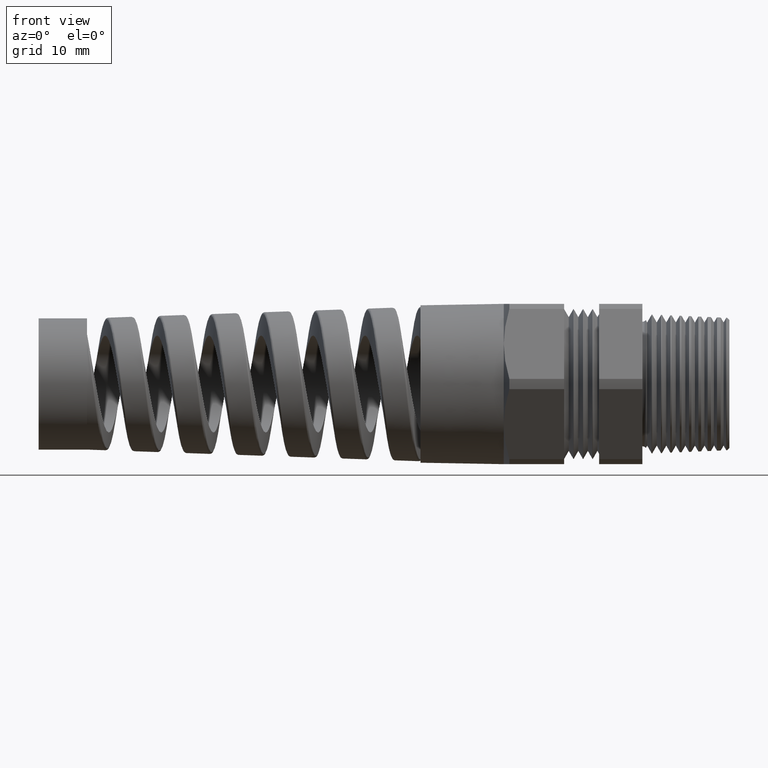
[diagram: clean part render]
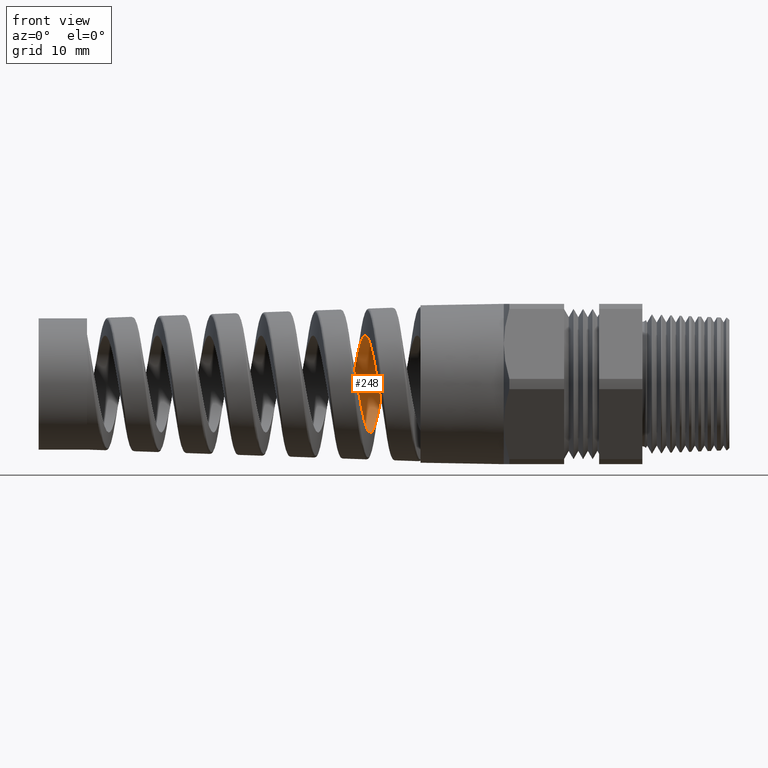
[diagram: same view with one face highlighted and labeled with its STEP entity id]
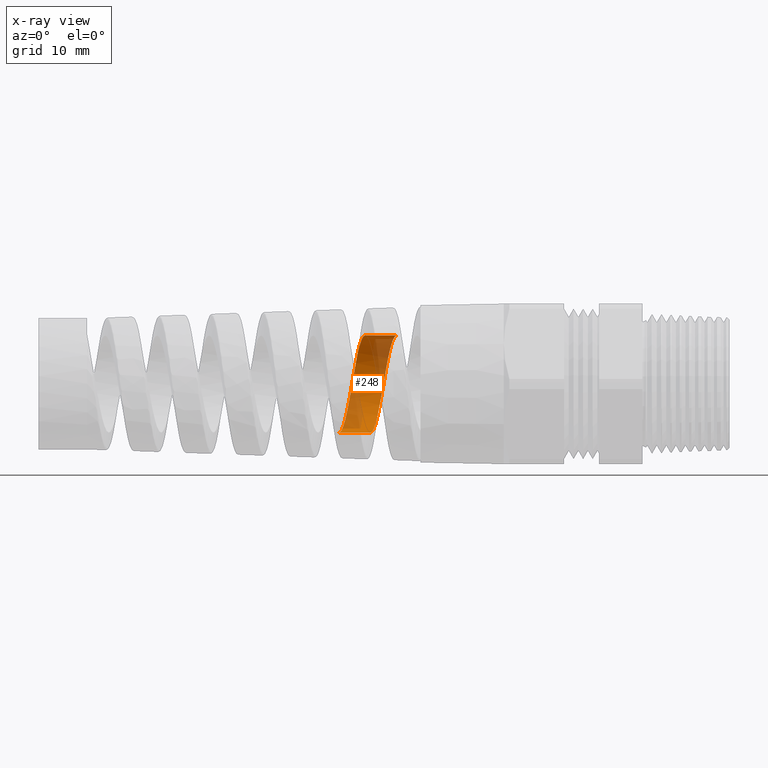
[diagram: x-ray of the same camera — body ghosted, the highlighted face saturated]
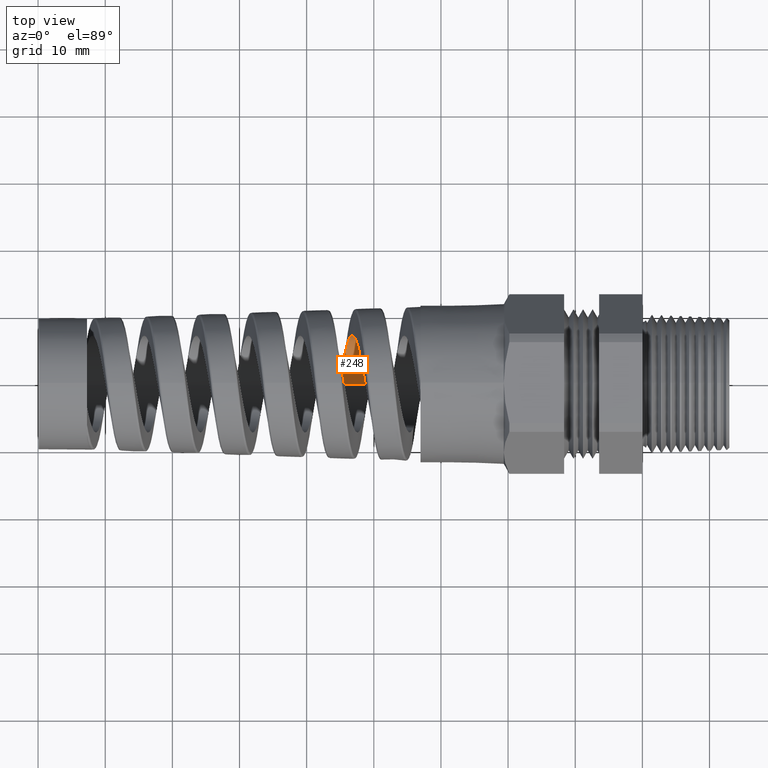
[diagram: same view with one face highlighted and labeled with its STEP entity id]
A machine part, front view. The second image highlights one B-rep face of the part: STEP entity #248.
The next image is the same camera in x-ray: the body ghosted, the highlighted face saturated — about 40% of this face is hidden behind the body in this view.
A second angle (top view) of the same face is appended — the face is thin or edge-on in the first view.
In plain terms, the highlighted cylindrical surface (partial cylindrical patch) has radius 7.2293 mm, axis along (1, 0, 0).
Its self-contained STEP definition (entity closure, byte-faithful):
#241 = EDGE_CURVE ( 'NONE', #298, #242, #1926, .T. ) ;
#242 = VERTEX_POINT ( 'NONE', #1948 ) ;
#248 = ADVANCED_FACE ( 'NONE', ( #1946 ), #1984, .F. ) ;
#249 = EDGE_LOOP ( 'NONE', ( #250, #251, #348, #349 ) ) ;
#250 = ORIENTED_EDGE ( 'NONE', *, *, #241, .F. ) ;
#251 = ORIENTED_EDGE ( 'NONE', *, *, #347, .F. ) ;
#263 = VERTEX_POINT ( 'NONE', #2086 ) ;
#280 = VERTEX_POINT ( 'NONE', #2294 ) ;
#282 = EDGE_CURVE ( 'NONE', #263, #280, #2293, .T. ) ;
#298 = VERTEX_POINT ( 'NONE', #2365 ) ;
#347 = EDGE_CURVE ( 'NONE', #263, #298, #2732, .T. ) ;
#348 = ORIENTED_EDGE ( 'NONE', *, *, #282, .T. ) ;
#349 = ORIENTED_EDGE ( 'NONE', *, *, #350, .F. ) ;
#350 = EDGE_CURVE ( 'NONE', #242, #280, #2765, .T. ) ;
#1926 = LINE ( 'NONE', #1951, #1950 ) ;
#1946 = FACE_OUTER_BOUND ( 'NONE', #249, .T. ) ;
#1948 = CARTESIAN_POINT ( 'NONE',  ( -1.441571078313244300, -3.992425102240716200E-013, 0.2846171090515571300 ) ) ;
#1949 = DIRECTION ( 'NONE',  ( 1.000000000000000000, 0.0000000000000000000, 0.0000000000000000000 ) ) ;
#1950 = VECTOR ( 'NONE', #1949, 39.37007874015748100 ) ;
#1951 = CARTESIAN_POINT ( 'NONE',  ( 0.4924815508901369000, 3.485554315825627000E-017, 0.2846171090515572400 ) ) ;
#1980 = DIRECTION ( 'NONE',  ( 0.0000000000000000000, 0.0000000000000000000, -1.000000000000000000 ) ) ;
#1981 = DIRECTION ( 'NONE',  ( 1.000000000000000000, 0.0000000000000000000, 0.0000000000000000000 ) ) ;
#1982 = CARTESIAN_POINT ( 'NONE',  ( 0.4924815508901369000, 0.0000000000000000000, 0.0000000000000000000 ) ) ;
#1983 = AXIS2_PLACEMENT_3D ( 'NONE', #1982, #1981, #1980 ) ;
#1984 = CYLINDRICAL_SURFACE ( 'NONE', #1983, 0.2846171090515572400 ) ;
#2086 = CARTESIAN_POINT ( 'NONE',  ( -1.778196407354094800, -4.385907254859398000E-013, -0.2846171090515572400 ) ) ;
#2290 = DIRECTION ( 'NONE',  ( 1.000000000000000000, 0.0000000000000000000, 0.0000000000000000000 ) ) ;
#2291 = VECTOR ( 'NONE', #2290, 39.37007874015748100 ) ;
#2292 = CARTESIAN_POINT ( 'NONE',  ( 0.4924815508901369000, 0.0000000000000000000, -0.2846171090515572400 ) ) ;
#2293 = LINE ( 'NONE', #2292, #2291 ) ;
#2294 = CARTESIAN_POINT ( 'NONE',  ( -1.594930611089587800, -3.916701690666334500E-013, -0.2846171090515571300 ) ) ;
#2365 = CARTESIAN_POINT ( 'NONE',  ( -1.625762788976611100, 7.944085910200974300E-013, 0.2846171090515572900 ) ) ;
#2714 = CARTESIAN_POINT ( 'NONE',  ( -1.717861947888129600, 0.2700842032037208400, -0.09168450074410795800 ) ) ;
#2715 = CARTESIAN_POINT ( 'NONE',  ( -1.724185411965954300, 0.2558863700712925600, -0.1259908334309390000 ) ) ;
#2716 = CARTESIAN_POINT ( 'NONE',  ( -1.727394664339257900, 0.2469609016505454600, -0.1427013343499916900 ) ) ;
#2717 = CARTESIAN_POINT ( 'NONE',  ( -1.733735774277392400, 0.2262721443874093400, -0.1736498616286283900 ) ) ;
#2718 = CARTESIAN_POINT ( 'NONE',  ( -1.736881736178111900, 0.2145135903079499800, -0.1879842589802907500 ) ) ;
#2719 = CARTESIAN_POINT ( 'NONE',  ( -1.741652903357178200, 0.1947568042691961400, -0.2077582772774494400 ) ) ;
#2720 = CARTESIAN_POINT ( 'NONE',  ( -1.743260768157794300, 0.1877743337727437700, -0.2140916641925536000 ) ) ;
#2721 = CARTESIAN_POINT ( 'NONE',  ( -1.746455555303980000, 0.1733081667856494200, -0.2259617676199503500 ) ) ;
#2722 = CARTESIAN_POINT ( 'NONE',  ( -1.748041624695422200, 0.1658315176178834500, -0.2315013120750269400 ) ) ;
#2723 = CARTESIAN_POINT ( 'NONE',  ( -1.752785414675493300, 0.1426920484818791900, -0.2469617013163874800 ) ) ;
#2724 = CARTESIAN_POINT ( 'NONE',  ( -1.755932465524721500, 0.1263267893343227600, -0.2557346780956584700 ) ) ;
#2725 = CARTESIAN_POINT ( 'NONE',  ( -1.762319400773013900, 0.09167487925698056300, -0.2701007215788705500 ) ) ;
#2726 = CARTESIAN_POINT ( 'NONE',  ( -1.765487987361176200, 0.07377544414096906500, -0.2755136005828409100 ) ) ;
#2727 = CARTESIAN_POINT ( 'NONE',  ( -1.770228341786347600, 0.04650391670847553400, -0.2809451901537031200 ) ) ;
#2728 = CARTESIAN_POINT ( 'NONE',  ( -1.771810012498581200, 0.03732147063902858900, -0.2823134242959379200 ) ) ;
#2729 = CARTESIAN_POINT ( 'NONE',  ( -1.774991131749641200, 0.01877213590322179100, -0.2841502571211033100 ) ) ;
#2730 = CARTESIAN_POINT ( 'NONE',  ( -1.776599464098445500, 0.009353101943699855200, -0.2846171090515716200 ) ) ;
#2731 = CARTESIAN_POINT ( 'NONE',  ( -1.778196407354094800, -4.385907254859398000E-013, -0.2846171090515572400 ) ) ;
#2732 = B_SPLINE_CURVE_WITH_KNOTS ( 'NONE', 3,
 ( #2731, #2730, #2729, #2728, #2727, #2726, #2725, #2724, #2723, #2722, #2721, #2720, #2719, #2718, #2717, #2716, #2715, #2714, #2796, #2795, #2794, #2793, #2792, #2791, #2790, #2789, #2788, #2787, #2786, #2785, #2784, #2783, #2782, #2781, #2780, #2779, #2778, #2777, #2776, #2775, #2774, #2773, #2772, #2771, #2770, #2769, #2768, #2767 ),
 .UNSPECIFIED., .F., .F.,
 ( 4, 2, 2, 2, 2, 2, 2, 2, 2, 2, 2, 1, 2, 2, 2, 2, 2, 2, 2, 2, 2, 2, 1, 2, 4 ),
 ( 0.2214995499316312600, 0.2222129903477921000, 0.2229264307639529100, 0.2243533115962745600, 0.2257801924285962300, 0.2264936328447570400, 0.2272070732609178800, 0.2286339540932395300, 0.2300608349255611800, 0.2314877157578828200, 0.2322011561740436300, 0.2329145965902044700, 0.2336280370063653100, 0.2343414774225261200, 0.2357683582548477900, 0.2364817986710086000, 0.2371952390871694400, 0.2386221199194910900, 0.2393355603356519300, 0.2400490007518127600, 0.2414758815841344100, 0.2421893220002952500, 0.2429027624164560900, 0.2436162028326169000, 0.2443296432487777300 ),
 .UNSPECIFIED. ) ;
#2755 = CARTESIAN_POINT ( 'NONE',  ( -1.473527561626110300, 0.1736127975749212900, 0.2262945276499376500 ) ) ;
#2756 = CARTESIAN_POINT ( 'NONE',  ( -1.468755488234717800, 0.1504950616764932400, 0.2417520727236123800 ) ) ;
#2757 = CARTESIAN_POINT ( 'NONE',  ( -1.467163140155801800, 0.1425349730342579900, 0.2465310404074272400 ) ) ;
#2758 = CARTESIAN_POINT ( 'NONE',  ( -1.463960833596917400, 0.1261001499329901000, 0.2553282683314219700 ) ) ;
#2759 = CARTESIAN_POINT ( 'NONE',  ( -1.462341933200626700, 0.1175765572545503000, 0.2593649049747372400 ) ) ;
#2760 = CARTESIAN_POINT ( 'NONE',  ( -1.457520710616127000, 0.09165062521111286300, 0.2701056637639465700 ) ) ;
#2761 = CARTESIAN_POINT ( 'NONE',  ( -1.454354264125616000, 0.07389225061812129700, 0.2754845077046285700 ) ) ;
#2762 = CARTESIAN_POINT ( 'NONE',  ( -1.447989836795326100, 0.03746804156138572300, 0.2827506402260249700 ) ) ;
#2763 = CARTESIAN_POINT ( 'NONE',  ( -1.444759877756292700, 0.01860728253017039600, 0.2846171090515831600 ) ) ;
#2764 = CARTESIAN_POINT ( 'NONE',  ( -1.441571078313244300, -3.992425102240716200E-013, 0.2846171090515571300 ) ) ;
#2765 = B_SPLINE_CURVE_WITH_KNOTS ( 'NONE', 3,
 ( #2764, #2763, #2762, #2761, #2760, #2759, #2758, #2757, #2756, #2755, #2841, #2840, #2839, #2838, #2837, #2836, #2835, #2834, #2833, #2832, #2831, #2830, #2829, #2828, #2827, #2826, #2825, #2824, #2823, #2822, #2821, #2820, #2819, #2818, #2817, #2816, #2815, #2814, #2813, #2812, #2811, #2810, #2809, #2808, #2807 ),
 .UNSPECIFIED., .F., .F.,
 ( 4, 2, 2, 2, 2, 2, 2, 2, 2, 2, 2, 2, 2, 1, 2, 2, 2, 2, 2, 2, 2, 2, 4 ),
 ( 0.05436372247649317500, 0.05579703386749213700, 0.05723034525849109800, 0.05794700095399057900, 0.05866365664949006000, 0.06009696804048902200, 0.06153027943148797800, 0.06224693512698745900, 0.06296359082248694000, 0.06439690221348588800, 0.06583021360448483600, 0.06726352499548379800, 0.06798018069098327200, 0.06869683638648274600, 0.06941349208198222000, 0.07013014777748169400, 0.07156345916848064200, 0.07228011486398011600, 0.07299677055947959000, 0.07443008195047853800, 0.07514673764597802600, 0.07586339334147750000, 0.07729670473247644800 ),
 .UNSPECIFIED. ) ;
#2767 = CARTESIAN_POINT ( 'NONE',  ( -1.625762788976611100, 7.944085910200974300E-013, 0.2846171090515572900 ) ) ;
#2768 = CARTESIAN_POINT ( 'NONE',  ( -1.627357306542739100, 0.009363600875693826200, 0.2846171090515309800 ) ) ;
#2769 = CARTESIAN_POINT ( 'NONE',  ( -1.628959721424789700, 0.01877093873445183700, 0.2841501157408986600 ) ) ;
#2770 = CARTESIAN_POINT ( 'NONE',  ( -1.632134157649513400, 0.03730694173653942300, 0.2823151227171598600 ) ) ;
#2771 = CARTESIAN_POINT ( 'NONE',  ( -1.635295317712739400, 0.05566498949499681200, 0.2795811607662113700 ) ) ;
#2772 = CARTESIAN_POINT ( 'NONE',  ( -1.638459550978524500, 0.07366727596754370200, 0.2750758327017339700 ) ) ;
#2773 = CARTESIAN_POINT ( 'NONE',  ( -1.641638838920864700, 0.09148701487981052100, 0.2696733345983837200 ) ) ;
#2774 = CARTESIAN_POINT ( 'NONE',  ( -1.643244229222765800, 0.1003499154665411500, 0.2665042790321057700 ) ) ;
#2775 = CARTESIAN_POINT ( 'NONE',  ( -1.648038606961729200, 0.1263079335933377500, 0.2557423600482347500 ) ) ;
#2776 = CARTESIAN_POINT ( 'NONE',  ( -1.651184457835291000, 0.1426686460149895200, 0.2469757221919035300 ) ) ;
#2777 = CARTESIAN_POINT ( 'NONE',  ( -1.655924975826615500, 0.1658175443602846200, 0.2315114544314498000 ) ) ;
#2778 = CARTESIAN_POINT ( 'NONE',  ( -1.657508454068728600, 0.1733002577503136000, 0.2259682765969888400 ) ) ;
#2779 = CARTESIAN_POINT ( 'NONE',  ( -1.660698443563263700, 0.1877829429574794900, 0.2140845807123118400 ) ) ;
#2780 = CARTESIAN_POINT ( 'NONE',  ( -1.662299714218848900, 0.1947550626561275500, 0.2077596205415933300 ) ) ;
#2781 = CARTESIAN_POINT ( 'NONE',  ( -1.667059318456679500, 0.2144987631754852200, 0.1879998982252520100 ) ) ;
#2782 = CARTESIAN_POINT ( 'NONE',  ( -1.670206972914775000, 0.2262592712350193200, 0.1736679109496504800 ) ) ;
#2783 = CARTESIAN_POINT ( 'NONE',  ( -1.674976798995754200, 0.2417866006259799500, 0.1504422284790303500 ) ) ;
#2784 = CARTESIAN_POINT ( 'NONE',  ( -1.676583204995035500, 0.2466305093721248600, 0.1423655906090634000 ) ) ;
#2785 = CARTESIAN_POINT ( 'NONE',  ( -1.679779200999059800, 0.2554541418704474600, 0.1258481265011700500 ) ) ;
#2786 = CARTESIAN_POINT ( 'NONE',  ( -1.681364338214877700, 0.2594288306316793700, 0.1174294283756340800 ) ) ;
#2787 = CARTESIAN_POINT ( 'NONE',  ( -1.686107895290131200, 0.2700749345860004600, 0.09171035197819370200 ) ) ;
#2788 = CARTESIAN_POINT ( 'NONE',  ( -1.689253160690354700, 0.2754802708716834700, 0.07395104015135621500 ) ) ;
#2789 = CARTESIAN_POINT ( 'NONE',  ( -1.694039729392601900, 0.2809690290321580400, 0.04638009048208888200 ) ) ;
#2790 = CARTESIAN_POINT ( 'NONE',  ( -1.695639793540772500, 0.2823456985383075400, 0.03707370920312972500 ) ) ;
#2791 = CARTESIAN_POINT ( 'NONE',  ( -1.698811566363396900, 0.2841647985037811200, 0.01854509877214277600 ) ) ;
#2792 = CARTESIAN_POINT ( 'NONE',  ( -1.701970589838386100, 0.2850688061147969600, 1.081620360156491500E-005 ) ) ;
#2793 = CARTESIAN_POINT ( 'NONE',  ( -1.705134431987454600, 0.2841660174178899400, -0.01852952612073342800 ) ) ;
#2794 = CARTESIAN_POINT ( 'NONE',  ( -1.708314805397855900, 0.2823463203499531100, -0.03707052978101510500 ) ) ;
#2795 = CARTESIAN_POINT ( 'NONE',  ( -1.709922032077161800, 0.2809667584596871600, -0.04639164950378006600 ) ) ;
#2796 = CARTESIAN_POINT ( 'NONE',  ( -1.714715280476534900, 0.2754842779758584500, -0.07393060466156888000 ) ) ;
#2807 = CARTESIAN_POINT ( 'NONE',  ( -1.594930611089587800, -3.916701690666334500E-013, -0.2846171090515571300 ) ) ;
#2808 = CARTESIAN_POINT ( 'NONE',  ( -1.591715883752620200, 0.01873569220934612200, -0.2846171090515829900 ) ) ;
#2809 = CARTESIAN_POINT ( 'NONE',  ( -1.588550959239236200, 0.03720834054199520500, -0.2827842976160494500 ) ) ;
#2810 = CARTESIAN_POINT ( 'NONE',  ( -1.583781685478610400, 0.06451744403597764500, -0.2773635311008585400 ) ) ;
#2811 = CARTESIAN_POINT ( 'NONE',  ( -1.582188422872674600, 0.07355340041656170700, -0.2751082599425109800 ) ) ;
#2812 = CARTESIAN_POINT ( 'NONE',  ( -1.578978222008371000, 0.09148456963138369700, -0.2696761593482000000 ) ) ;
#2813 = CARTESIAN_POINT ( 'NONE',  ( -1.577366540823636400, 0.1003481719937255300, -0.2665030096013548100 ) ) ;
#2814 = CARTESIAN_POINT ( 'NONE',  ( -1.572575462063515300, 0.1261559967414636300, -0.2558093180238326700 ) ) ;
#2815 = CARTESIAN_POINT ( 'NONE',  ( -1.569406187211652900, 0.1425096049800754800, -0.2470726047654273300 ) ) ;
#2816 = CARTESIAN_POINT ( 'NONE',  ( -1.564605234458129400, 0.1657491444448902200, -0.2315617845710384600 ) ) ;
#2817 = CARTESIAN_POINT ( 'NONE',  ( -1.562988651814363400, 0.1733172341434072700, -0.2259551404083435200 ) ) ;
#2818 = CARTESIAN_POINT ( 'NONE',  ( -1.559773663443960500, 0.1877948284265137900, -0.2140740328585676900 ) ) ;
#2819 = CARTESIAN_POINT ( 'NONE',  ( -1.558179250226958500, 0.1946910033693649000, -0.2078182386399914400 ) ) ;
#2820 = CARTESIAN_POINT ( 'NONE',  ( -1.553407318206818900, 0.2143759067699114500, -0.1881337362611344700 ) ) ;
#2821 = CARTESIAN_POINT ( 'NONE',  ( -1.550243426338164400, 0.2261705607548054100, -0.1737960669502504100 ) ) ;
#2822 = CARTESIAN_POINT ( 'NONE',  ( -1.545426832038857800, 0.2417990663026909300, -0.1504258437525819700 ) ) ;
#2823 = CARTESIAN_POINT ( 'NONE',  ( -1.543816428831240200, 0.2466346689348132000, -0.1423548733192663800 ) ) ;
#2824 = CARTESIAN_POINT ( 'NONE',  ( -1.540623793597486200, 0.2554102820207045400, -0.1259331478064192600 ) ) ;
#2825 = CARTESIAN_POINT ( 'NONE',  ( -1.537443624072551300, 0.2633424966472430700, -0.1091558533202045500 ) ) ;
#2826 = CARTESIAN_POINT ( 'NONE',  ( -1.534258445937177300, 0.2696075510975515200, -0.09168124393181199800 ) ) ;
#2827 = CARTESIAN_POINT ( 'NONE',  ( -1.531057134932888500, 0.2750256895549036400, -0.07385494013641226400 ) ) ;
#2828 = CARTESIAN_POINT ( 'NONE',  ( -1.529439582393659300, 0.2773201506633116700, -0.06471521241583794200 ) ) ;
#2829 = CARTESIAN_POINT ( 'NONE',  ( -1.524617140391203700, 0.2827996078461869600, -0.03717235848369750100 ) ) ;
#2830 = CARTESIAN_POINT ( 'NONE',  ( -1.521452309850324100, 0.2846082275158894300, -0.01870155582355624600 ) ) ;
#2831 = CARTESIAN_POINT ( 'NONE',  ( -1.515090958150903800, 0.2846259259269364700, 0.01843023738837709300 ) ) ;
#2832 = CARTESIAN_POINT ( 'NONE',  ( -1.511861843294161300, 0.2827775753658090500, 0.03728633555105816100 ) ) ;
#2833 = CARTESIAN_POINT ( 'NONE',  ( -1.505479281997668800, 0.2755119365726998400, 0.07380108911494860600 ) ) ;
#2834 = CARTESIAN_POINT ( 'NONE',  ( -1.502311808994577100, 0.2701360382268198100, 0.09154633214753452000 ) ) ;
#2835 = CARTESIAN_POINT ( 'NONE',  ( -1.497509018054992400, 0.2594530876681622200, 0.1173789669947025700 ) ) ;
#2836 = CARTESIAN_POINT ( 'NONE',  ( -1.495890697090385400, 0.2554266954289805000, 0.1259033961804906800 ) ) ;
#2837 = CARTESIAN_POINT ( 'NONE',  ( -1.492676024434303400, 0.2466052372457377100, 0.1424089845147566700 ) ) ;
#2838 = CARTESIAN_POINT ( 'NONE',  ( -1.491081094227549400, 0.2418179443010848300, 0.1503896612049431000 ) ) ;
#2839 = CARTESIAN_POINT ( 'NONE',  ( -1.486308599296150200, 0.2263572868557296400, 0.1735325788607883800 ) ) ;
#2840 = CARTESIAN_POINT ( 'NONE',  ( -1.483143204979749100, 0.2145953256813784000, 0.1879031100447414400 ) ) ;
#2841 = CARTESIAN_POINT ( 'NONE',  ( -1.476717000123136400, 0.1880795000507193300, 0.2144407475958209100 ) ) ;